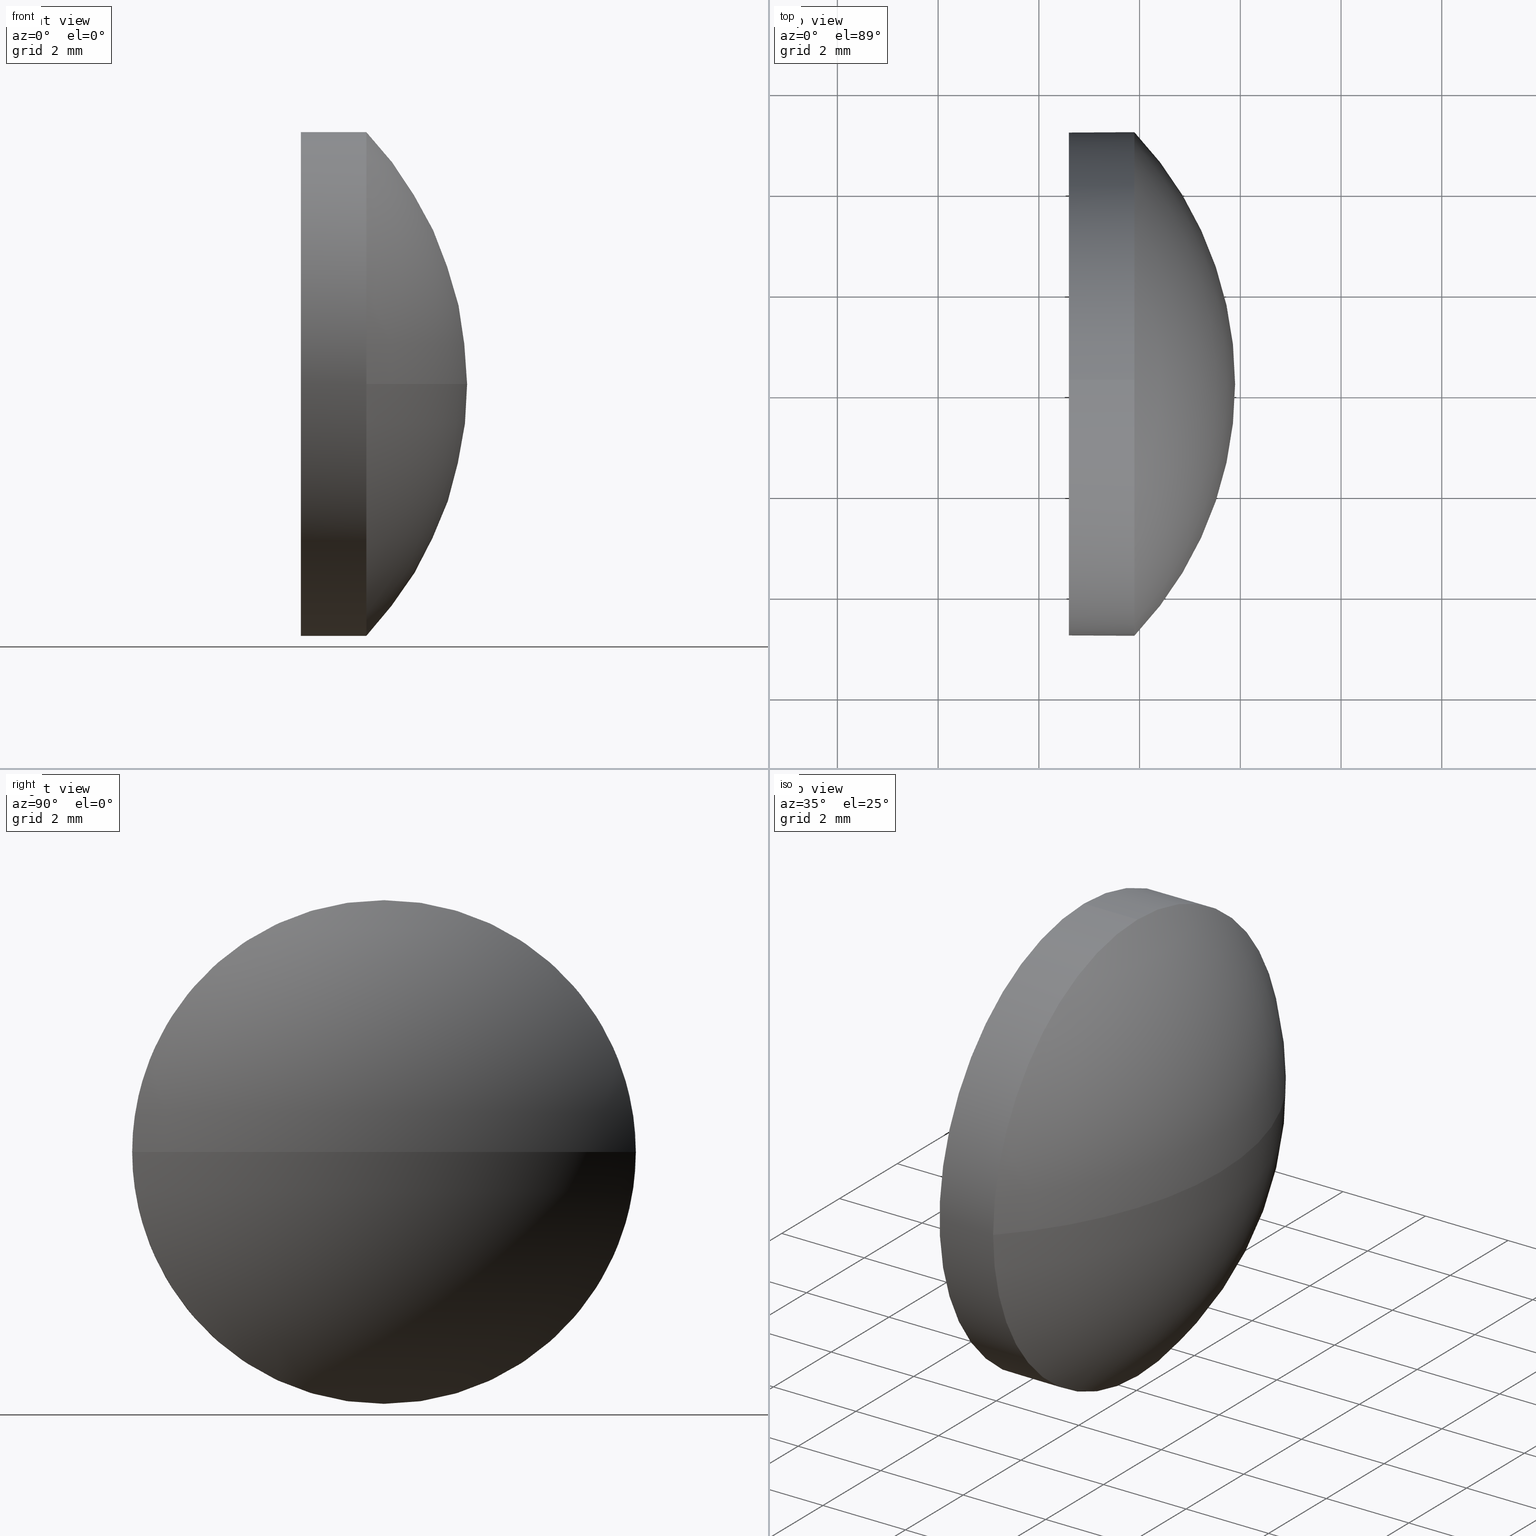
[diagram: canonical four-view strip — front | top / right | iso, engineering-drawing reading convention]
A machine part, canonical four-view strip (front | top / right | iso — engineering-drawing reading convention). The complete STEP part file that produces these views, byte-faithful:
ISO-10303-21;
HEADER;
FILE_DESCRIPTION (( 'STEP AP214' ),
    '1' );
FILE_NAME ('100358.STEP',
    '2019-06-03T07:23:57',
    ( '' ),
    ( '' ),
    'SwSTEP 2.0',
    'SolidWorks 2016',
    '' );
FILE_SCHEMA (( 'AUTOMOTIVE_DESIGN' ));
ENDSEC;

DATA;
#1 = DIRECTION ( 'NONE',  ( 0.0000000000000000000, 0.0000000000000000000, 1.000000000000000000 ) ) ;
#2 = EDGE_LOOP ( 'NONE', ( #167, #55, #72, #52 ) ) ;
#3 = ORIENTED_EDGE ( 'NONE', *, *, #27, .F. ) ;
#4 =( GEOMETRIC_REPRESENTATION_CONTEXT ( 3 ) GLOBAL_UNCERTAINTY_ASSIGNED_CONTEXT ( ( #73 ) ) GLOBAL_UNIT_ASSIGNED_CONTEXT ( ( #105, #150, #136 ) ) REPRESENTATION_CONTEXT ( 'NONE', 'WORKASPACE' ) );
#5 = DIRECTION ( 'NONE',  ( -1.000000000000000000, -0.0000000000000000000, -0.0000000000000000000 ) ) ;
#6 = ORIENTED_EDGE ( 'NONE', *, *, #118, .T. ) ;
#7 = DIRECTION ( 'NONE',  ( -1.000000000000000000, -0.0000000000000000000, -0.0000000000000000000 ) ) ;
#8 = DIRECTION ( 'NONE',  ( -1.000000000000000000, -0.0000000000000000000, -0.0000000000000000000 ) ) ;
#9 = AXIS2_PLACEMENT_3D ( 'NONE', #103, #67, #50 ) ;
#10 = APPLICATION_CONTEXT ( 'automotive_design' ) ;
#11 = DIRECTION ( 'NONE',  ( -1.000000000000000000, -0.0000000000000000000, -0.0000000000000000000 ) ) ;
#12 = CYLINDRICAL_SURFACE ( 'NONE', #104, 4.999999999999990200 ) ;
#13 = CARTESIAN_POINT ( 'NONE',  ( 409.8965939749438100, 127.1833303763285700, 0.0000000000000000000 ) ) ;
#14 = EDGE_CURVE ( 'NONE', #44, #40, #182, .T. ) ;
#15 = PRODUCT_RELATED_PRODUCT_CATEGORY ( 'part', '', ( #36 ) ) ;
#16 = PRODUCT_DEFINITION_SHAPE ( 'NONE', 'NONE',  #158 ) ;
#17 = CARTESIAN_POINT ( 'NONE',  ( 408.5965939749438000, 122.1833303763285700, 0.0000000000000000000 ) ) ;
#18 = LINE ( 'NONE', #165, #181 ) ;
#19 = CARTESIAN_POINT ( 'NONE',  ( 409.8965939749438100, 117.1833303763285600, -6.123233995736756400E-016 ) ) ;
#20 = ADVANCED_FACE ( 'NONE', ( #185 ), #160, .T. ) ;
#21 = DIRECTION ( 'NONE',  ( 0.0000000000000000000, 0.0000000000000000000, 1.000000000000000000 ) ) ;
#22 = AXIS2_PLACEMENT_3D ( 'NONE', #74, #143, #128 ) ;
#23 = PLANE ( 'NONE',  #9 ) ;
#24 = ORIENTED_EDGE ( 'NONE', *, *, #87, .F. ) ;
#25 = DIRECTION ( 'NONE',  ( -1.000000000000000000, -0.0000000000000000000, -0.0000000000000000000 ) ) ;
#26 = MECHANICAL_DESIGN_GEOMETRIC_PRESENTATION_REPRESENTATION (  '', ( #142 ), #83 ) ;
#27 = EDGE_CURVE ( 'NONE', #34, #172, #18, .T. ) ;
#28 = CARTESIAN_POINT ( 'NONE',  ( 408.5965939749438000, 122.1833303763285700, -4.999999999999990200 ) ) ;
#29 = CIRCLE ( 'NONE', #22, 4.999999999999990200 ) ;
#30 = ORIENTED_EDGE ( 'NONE', *, *, #110, .T. ) ;
#31 =( LENGTH_UNIT ( ) NAMED_UNIT ( * ) SI_UNIT ( .MILLI., .METRE. ) );
#32 = CIRCLE ( 'NONE', #59, 7.250000000000033800 ) ;
#33 = FILL_AREA_STYLE ('',( #177 ) ) ;
#34 = VERTEX_POINT ( 'NONE', #60 ) ;
#35 = DIRECTION ( 'NONE',  ( 0.0000000000000000000, 1.000000000000000000, 1.224646799147351200E-016 ) ) ;
#36 = PRODUCT ( '100358', '100358', '', ( #132 ) ) ;
#37 = CARTESIAN_POINT ( 'NONE',  ( 408.5965939749438000, 122.1833303763285700, 4.999999999999990200 ) ) ;
#38 = MECHANICAL_DESIGN_GEOMETRIC_PRESENTATION_REPRESENTATION (  '', ( #155 ), #180 ) ;
#39 = ADVANCED_FACE ( 'NONE', ( #92 ), #54, .T. ) ;
#40 = VERTEX_POINT ( 'NONE', #28 ) ;
#41 = CARTESIAN_POINT ( 'NONE',  ( 407.4543642824994000, 122.1833303763285700, 0.0000000000000000000 ) ) ;
#42 = VERTEX_POINT ( 'NONE', #81 ) ;
#43 = UNCERTAINTY_MEASURE_WITH_UNIT (LENGTH_MEASURE( 1.000000000000000100E-005 ), #163, 'distance_accuracy_value', 'NONE');
#44 = VERTEX_POINT ( 'NONE', #56 ) ;
#45 = PRESENTATION_LAYER_ASSIGNMENT (  '', '', ( #155 ) ) ;
#46 = FACE_OUTER_BOUND ( 'NONE', #97, .T. ) ;
#47 = ORIENTED_EDGE ( 'NONE', *, *, #14, .T. ) ;
#48 = SURFACE_SIDE_STYLE ('',( #179 ) ) ;
#49 = DIRECTION ( 'NONE',  ( 0.0000000000000000000, 0.0000000000000000000, 1.000000000000000000 ) ) ;
#50 = DIRECTION ( 'NONE',  ( 0.0000000000000000000, 0.0000000000000000000, -1.000000000000000000 ) ) ;
#51 = CARTESIAN_POINT ( 'NONE',  ( 407.4543642824994000, 122.1833303763285700, 0.0000000000000000000 ) ) ;
#52 = ORIENTED_EDGE ( 'NONE', *, *, #118, .F. ) ;
#53 = CARTESIAN_POINT ( 'NONE',  ( 404.6465939749438100, 122.1833303763285400, 0.0000000000000000000 ) ) ;
#54 = CYLINDRICAL_SURFACE ( 'NONE', #91, 4.999999999999990200 ) ;
#55 = ORIENTED_EDGE ( 'NONE', *, *, #87, .T. ) ;
#56 = CARTESIAN_POINT ( 'NONE',  ( 409.8965939749438100, 122.1833303763285700, -4.999999999999990200 ) ) ;
#57 = EDGE_LOOP ( 'NONE', ( #89, #120, #6, #82, #102 ) ) ;
#58 = FILL_AREA_STYLE_COLOUR ( '', #99 ) ;
#59 = AXIS2_PLACEMENT_3D ( 'NONE', #95, #98, #70 ) ;
#60 = CARTESIAN_POINT ( 'NONE',  ( 409.8965939749438100, 122.1833303763285700, 4.999999999999990200 ) ) ;
#61 = ADVANCED_BREP_SHAPE_REPRESENTATION ( '100358', ( #108, #114 ), #4 ) ;
#62 = DIRECTION ( 'NONE',  ( -0.0000000000000000000, 0.0000000000000000000, -1.000000000000000000 ) ) ;
#63 = CARTESIAN_POINT ( 'NONE',  ( 408.5965939749438000, 122.1833303763285700, 0.0000000000000000000 ) ) ;
#64 = DIRECTION ( 'NONE',  ( 1.000000000000000000, 0.0000000000000000000, 0.0000000000000000000 ) ) ;
#65 = AXIS2_PLACEMENT_3D ( 'NONE', #63, #5, #159 ) ;
#66 =( NAMED_UNIT ( * ) PLANE_ANGLE_UNIT ( ) SI_UNIT ( $, .RADIAN. ) );
#67 = DIRECTION ( 'NONE',  ( 1.000000000000000000, 0.0000000000000000000, 0.0000000000000000000 ) ) ;
#68 = CIRCLE ( 'NONE', #65, 4.999999999999990200 ) ;
#69 = EDGE_LOOP ( 'NONE', ( #24, #156, #153, #115 ) ) ;
#70 = DIRECTION ( 'NONE',  ( 1.000000000000000000, 0.0000000000000000000, 0.0000000000000000000 ) ) ;
#71 = AXIS2_PLACEMENT_3D ( 'NONE', #88, #8, #21 ) ;
#72 = ORIENTED_EDGE ( 'NONE', *, *, #157, .F. ) ;
#73 = UNCERTAINTY_MEASURE_WITH_UNIT (LENGTH_MEASURE( 1.000000000000000100E-005 ), #105, 'distance_accuracy_value', 'NONE');
#74 = CARTESIAN_POINT ( 'NONE',  ( 409.8965939749438100, 122.1833303763285700, 0.0000000000000000000 ) ) ;
#75 = PRESENTATION_STYLE_ASSIGNMENT (( #178 ) ) ;
#76 = DIRECTION ( 'NONE',  ( -1.000000000000000000, -0.0000000000000000000, -0.0000000000000000000 ) ) ;
#77 = ORIENTED_EDGE ( 'NONE', *, *, #157, .T. ) ;
#78 = DIRECTION ( 'NONE',  ( -1.000000000000000000, -0.0000000000000000000, -0.0000000000000000000 ) ) ;
#79 = SURFACE_SIDE_STYLE ('',( #154 ) ) ;
#80 = VERTEX_POINT ( 'NONE', #13 ) ;
#81 = CARTESIAN_POINT ( 'NONE',  ( 411.8965939749438100, 122.1833303763285400, 0.0000000000000000000 ) ) ;
#82 = ORIENTED_EDGE ( 'NONE', *, *, #27, .T. ) ;
#83 =( GEOMETRIC_REPRESENTATION_CONTEXT ( 3 ) GLOBAL_UNCERTAINTY_ASSIGNED_CONTEXT ( ( #43 ) ) GLOBAL_UNIT_ASSIGNED_CONTEXT ( ( #163, #66, #109 ) ) REPRESENTATION_CONTEXT ( 'NONE', 'WORKASPACE' ) );
#84 = PRESENTATION_STYLE_ASSIGNMENT (( #116 ) ) ;
#85 = EDGE_LOOP ( 'NONE', ( #127, #30 ) ) ;
#86 = UNCERTAINTY_MEASURE_WITH_UNIT (LENGTH_MEASURE( 1.000000000000000100E-005 ), #31, 'distance_accuracy_value', 'NONE');
#87 = EDGE_CURVE ( 'NONE', #42, #80, #32, .T. ) ;
#88 = CARTESIAN_POINT ( 'NONE',  ( 409.8965939749438100, 122.1833303763285700, 0.0000000000000000000 ) ) ;
#89 = ORIENTED_EDGE ( 'NONE', *, *, #14, .F. ) ;
#90 = CARTESIAN_POINT ( 'NONE',  ( 0.0000000000000000000, 0.0000000000000000000, 0.0000000000000000000 ) ) ;
#91 = AXIS2_PLACEMENT_3D ( 'NONE', #41, #171, #1 ) ;
#92 = FACE_OUTER_BOUND ( 'NONE', #57, .T. ) ;
#93 = CIRCLE ( 'NONE', #184, 7.250000000000048000 ) ;
#94 = ORIENTED_EDGE ( 'NONE', *, *, #96, .T. ) ;
#95 = CARTESIAN_POINT ( 'NONE',  ( 404.6465939749438100, 122.1833303763285400, 0.0000000000000000000 ) ) ;
#96 = EDGE_CURVE ( 'NONE', #80, #44, #133, .T. ) ;
#97 = EDGE_LOOP ( 'NONE', ( #94, #47, #144, #3, #77 ) ) ;
#98 = DIRECTION ( 'NONE',  ( -0.0000000000000000000, 0.0000000000000000000, 1.000000000000000000 ) ) ;
#99 = COLOUR_RGB ( '',1.000000000000000000, 1.000000000000000000, 1.000000000000000000 ) ;
#100 = CARTESIAN_POINT ( 'NONE',  ( 404.6465939749438100, 122.1833303763285400, 0.0000000000000000000 ) ) ;
#101 =( NAMED_UNIT ( * ) SI_UNIT ( $, .STERADIAN. ) SOLID_ANGLE_UNIT ( ) );
#102 = ORIENTED_EDGE ( 'NONE', *, *, #110, .F. ) ;
#103 = CARTESIAN_POINT ( 'NONE',  ( 408.5965939749438000, 122.1833303763285700, 0.0000000000000000000 ) ) ;
#104 = AXIS2_PLACEMENT_3D ( 'NONE', #51, #78, #152 ) ;
#105 =( LENGTH_UNIT ( ) NAMED_UNIT ( * ) SI_UNIT ( .MILLI., .METRE. ) );
#106 = APPLICATION_PROTOCOL_DEFINITION ( 'draft international standard', 'automotive_design', 1998, #161 ) ;
#107 = FACE_OUTER_BOUND ( 'NONE', #85, .T. ) ;
#108 = MANIFOLD_SOLID_BREP ( '��ת1', #139 ) ;
#109 =( NAMED_UNIT ( * ) SI_UNIT ( $, .STERADIAN. ) SOLID_ANGLE_UNIT ( ) );
#110 = EDGE_CURVE ( 'NONE', #40, #172, #68, .T. ) ;
#111 = VECTOR ( 'NONE', #168, 1000.000000000000000 ) ;
#112 = AXIS2_PLACEMENT_3D ( 'NONE', #145, #7, #174 ) ;
#113 = SPHERICAL_SURFACE ( 'NONE', #173, 7.250000000000034600 ) ;
#114 = AXIS2_PLACEMENT_3D ( 'NONE', #90, #149, #64 ) ;
#115 = ORIENTED_EDGE ( 'NONE', *, *, #96, .F. ) ;
#116 = SURFACE_STYLE_USAGE ( .BOTH. , #48 ) ;
#117 = DIRECTION ( 'NONE',  ( 0.0000000000000000000, 0.0000000000000000000, 1.000000000000000000 ) ) ;
#118 = EDGE_CURVE ( 'NONE', #148, #34, #29, .T. ) ;
#119 = CARTESIAN_POINT ( 'NONE',  ( 409.8965939749438100, 122.1833303763285700, 0.0000000000000000000 ) ) ;
#120 = ORIENTED_EDGE ( 'NONE', *, *, #140, .T. ) ;
#121 = PRODUCT_DEFINITION_CONTEXT ( 'detailed design', #161, 'design' ) ;
#122 = DIRECTION ( 'NONE',  ( 0.0000000000000000000, 1.000000000000000000, 0.0000000000000000000 ) ) ;
#123 = CIRCLE ( 'NONE', #162, 4.999999999999990200 ) ;
#124 = FACE_OUTER_BOUND ( 'NONE', #69, .T. ) ;
#125 = EDGE_CURVE ( 'NONE', #172, #40, #123, .T. ) ;
#126 = SHAPE_DEFINITION_REPRESENTATION ( #16, #61 ) ;
#127 = ORIENTED_EDGE ( 'NONE', *, *, #125, .T. ) ;
#128 = DIRECTION ( 'NONE',  ( 0.0000000000000000000, 0.0000000000000000000, 1.000000000000000000 ) ) ;
#129 = AXIS2_PLACEMENT_3D ( 'NONE', #119, #11, #49 ) ;
#130 = COLOUR_RGB ( '',1.000000000000000000, 1.000000000000000000, 1.000000000000000000 ) ;
#131 = FILL_AREA_STYLE ('',( #58 ) ) ;
#132 = PRODUCT_CONTEXT ( 'NONE', #10, 'mechanical' ) ;
#133 = CIRCLE ( 'NONE', #112, 4.999999999999990200 ) ;
#134 = APPLICATION_PROTOCOL_DEFINITION ( 'draft international standard', 'automotive_design', 1998, #10 ) ;
#135 = PRESENTATION_LAYER_ASSIGNMENT (  '', '', ( #142 ) ) ;
#136 =( NAMED_UNIT ( * ) SI_UNIT ( $, .STERADIAN. ) SOLID_ANGLE_UNIT ( ) );
#137 = ADVANCED_FACE ( 'NONE', ( #124 ), #113, .T. ) ;
#138 = DIRECTION ( 'NONE',  ( 0.0000000000000000000, 1.224646799147353200E-016, -1.000000000000000000 ) ) ;
#139 = CLOSED_SHELL ( 'NONE', ( #151, #137, #20, #39, #164 ) ) ;
#140 = EDGE_CURVE ( 'NONE', #44, #148, #147, .T. ) ;
#141 = CARTESIAN_POINT ( 'NONE',  ( 407.4543642824994000, 122.1833303763285700, -4.999999999999990200 ) ) ;
#142 = STYLED_ITEM ( 'NONE', ( #75 ), #61 ) ;
#143 = DIRECTION ( 'NONE',  ( -1.000000000000000000, -0.0000000000000000000, -0.0000000000000000000 ) ) ;
#144 = ORIENTED_EDGE ( 'NONE', *, *, #125, .F. ) ;
#145 = CARTESIAN_POINT ( 'NONE',  ( 409.8965939749438100, 122.1833303763285700, 0.0000000000000000000 ) ) ;
#146 =( NAMED_UNIT ( * ) PLANE_ANGLE_UNIT ( ) SI_UNIT ( $, .RADIAN. ) );
#147 = CIRCLE ( 'NONE', #71, 4.999999999999990200 ) ;
#148 = VERTEX_POINT ( 'NONE', #19 ) ;
#149 = DIRECTION ( 'NONE',  ( 0.0000000000000000000, 0.0000000000000000000, 1.000000000000000000 ) ) ;
#150 =( NAMED_UNIT ( * ) PLANE_ANGLE_UNIT ( ) SI_UNIT ( $, .RADIAN. ) );
#151 = ADVANCED_FACE ( 'NONE', ( #46 ), #12, .T. ) ;
#152 = DIRECTION ( 'NONE',  ( 0.0000000000000000000, 0.0000000000000000000, 1.000000000000000000 ) ) ;
#153 = ORIENTED_EDGE ( 'NONE', *, *, #140, .F. ) ;
#154 = SURFACE_STYLE_FILL_AREA ( #33 ) ;
#155 = STYLED_ITEM ( 'NONE', ( #84 ), #108 ) ;
#156 = ORIENTED_EDGE ( 'NONE', *, *, #176, .T. ) ;
#157 = EDGE_CURVE ( 'NONE', #34, #80, #170, .T. ) ;
#158 = PRODUCT_DEFINITION ( 'δ֪', '', #169, #121 ) ;
#159 = DIRECTION ( 'NONE',  ( 0.0000000000000000000, 0.0000000000000000000, 1.000000000000000000 ) ) ;
#160 = SPHERICAL_SURFACE ( 'NONE', #166, 7.250000000000034600 ) ;
#161 = APPLICATION_CONTEXT ( 'automotive_design' ) ;
#162 = AXIS2_PLACEMENT_3D ( 'NONE', #17, #76, #117 ) ;
#163 =( LENGTH_UNIT ( ) NAMED_UNIT ( * ) SI_UNIT ( .MILLI., .METRE. ) );
#164 = ADVANCED_FACE ( 'NONE', ( #107 ), #23, .F. ) ;
#165 = CARTESIAN_POINT ( 'NONE',  ( 407.4543642824994000, 122.1833303763285700, 4.999999999999990200 ) ) ;
#166 = AXIS2_PLACEMENT_3D ( 'NONE', #186, #183, #122 ) ;
#167 = ORIENTED_EDGE ( 'NONE', *, *, #176, .F. ) ;
#168 = DIRECTION ( 'NONE',  ( -1.000000000000000000, -0.0000000000000000000, -0.0000000000000000000 ) ) ;
#169 = PRODUCT_DEFINITION_FORMATION_WITH_SPECIFIED_SOURCE ( '�κ�', '', #36, .NOT_KNOWN. ) ;
#170 = CIRCLE ( 'NONE', #129, 4.999999999999990200 ) ;
#171 = DIRECTION ( 'NONE',  ( -1.000000000000000000, -0.0000000000000000000, -0.0000000000000000000 ) ) ;
#172 = VERTEX_POINT ( 'NONE', #37 ) ;
#173 = AXIS2_PLACEMENT_3D ( 'NONE', #100, #62, #175 ) ;
#174 = DIRECTION ( 'NONE',  ( 0.0000000000000000000, 0.0000000000000000000, 1.000000000000000000 ) ) ;
#175 = DIRECTION ( 'NONE',  ( 0.0000000000000000000, 1.000000000000000000, 0.0000000000000000000 ) ) ;
#176 = EDGE_CURVE ( 'NONE', #42, #148, #93, .T. ) ;
#177 = FILL_AREA_STYLE_COLOUR ( '', #130 ) ;
#178 = SURFACE_STYLE_USAGE ( .BOTH. , #79 ) ;
#179 = SURFACE_STYLE_FILL_AREA ( #131 ) ;
#180 =( GEOMETRIC_REPRESENTATION_CONTEXT ( 3 ) GLOBAL_UNCERTAINTY_ASSIGNED_CONTEXT ( ( #86 ) ) GLOBAL_UNIT_ASSIGNED_CONTEXT ( ( #31, #146, #101 ) ) REPRESENTATION_CONTEXT ( 'NONE', 'WORKASPACE' ) );
#181 = VECTOR ( 'NONE', #25, 1000.000000000000000 ) ;
#182 = LINE ( 'NONE', #141, #111 ) ;
#183 = DIRECTION ( 'NONE',  ( -0.0000000000000000000, 0.0000000000000000000, -1.000000000000000000 ) ) ;
#184 = AXIS2_PLACEMENT_3D ( 'NONE', #53, #138, #35 ) ;
#185 = FACE_OUTER_BOUND ( 'NONE', #2, .T. ) ;
#186 = CARTESIAN_POINT ( 'NONE',  ( 404.6465939749438100, 122.1833303763285400, 0.0000000000000000000 ) ) ;
ENDSEC;
END-ISO-10303-21;
